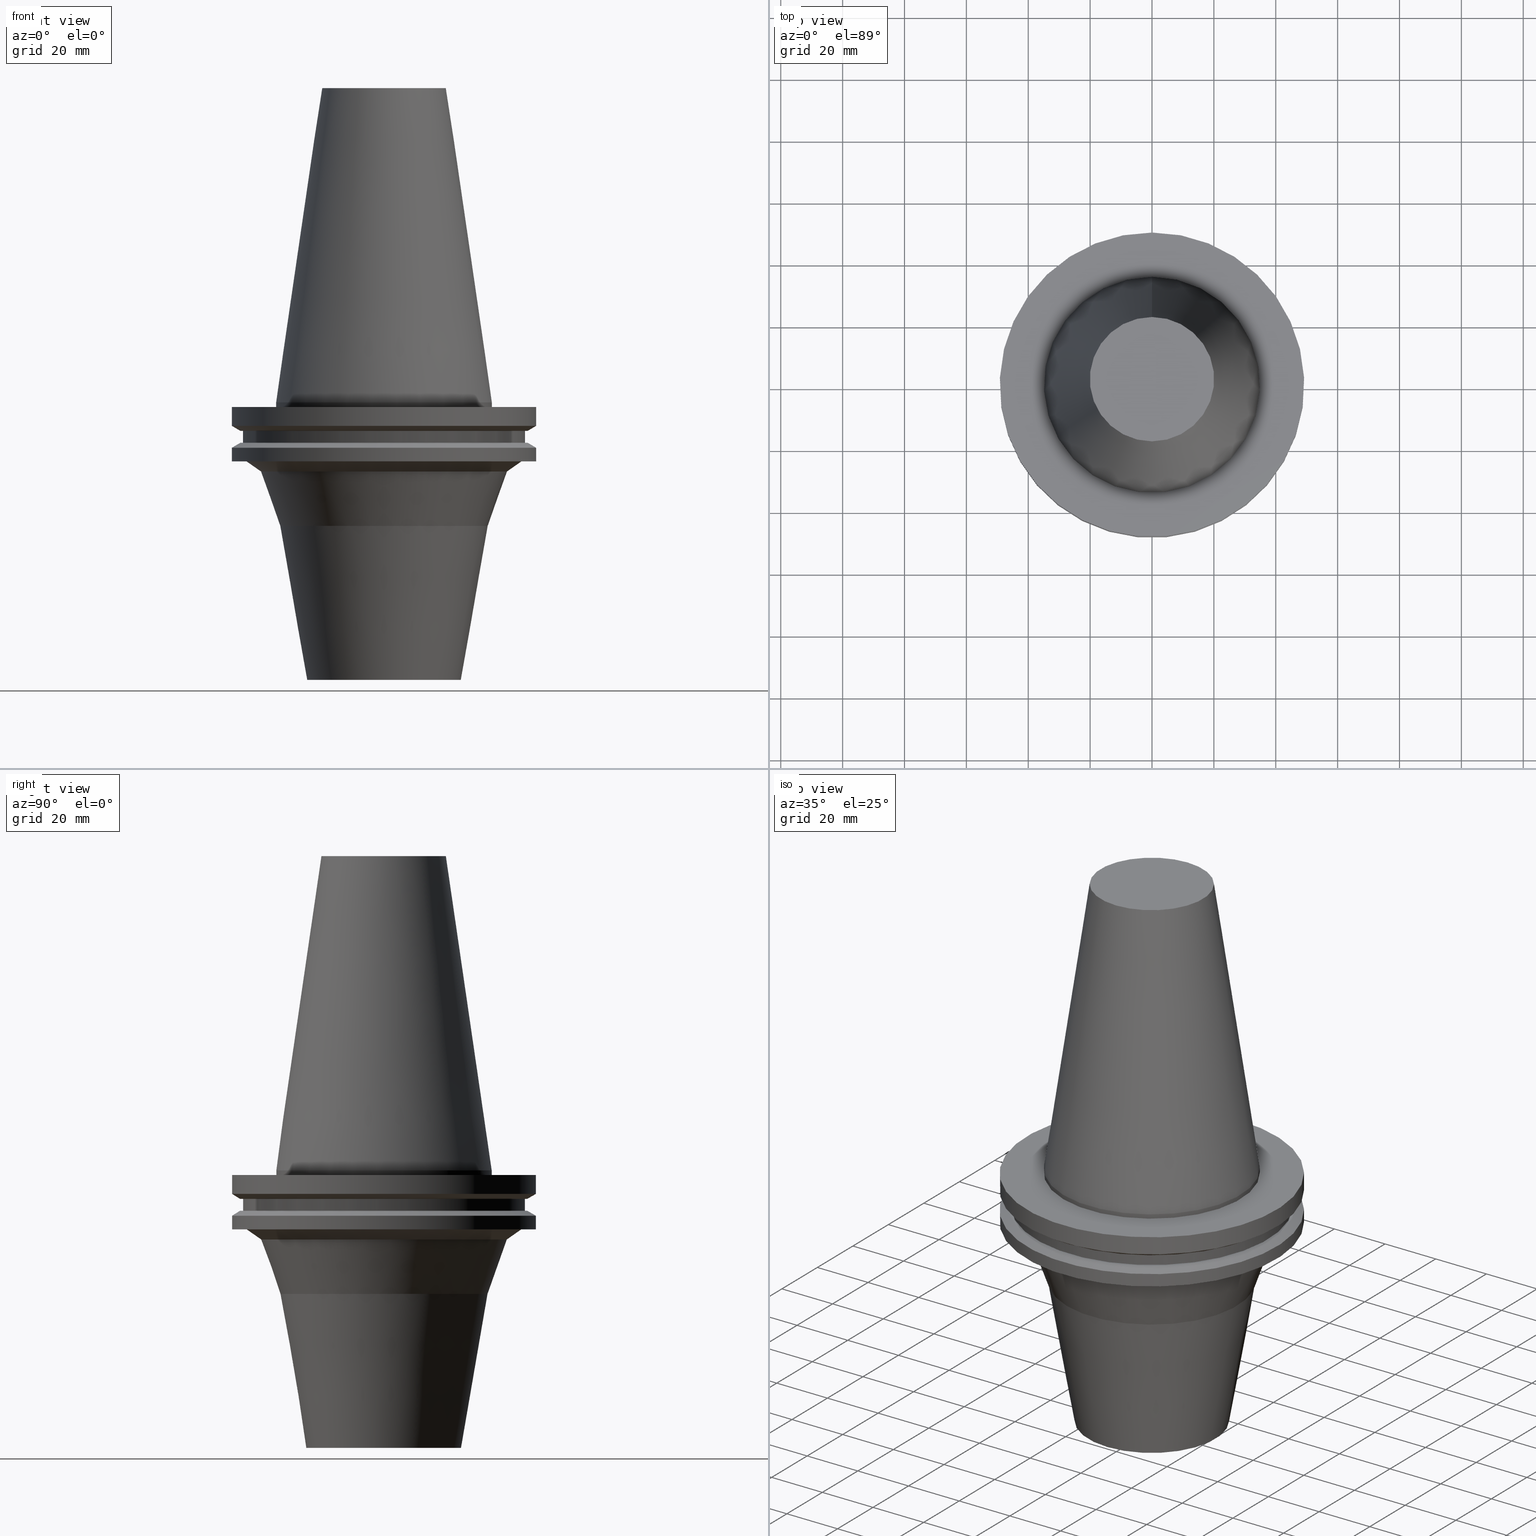
[diagram: canonical four-view strip — front | top / right | iso, engineering-drawing reading convention]
A machine part, canonical four-view strip (front | top / right | iso — engineering-drawing reading convention). The complete STEP part file that produces these views, byte-faithful:
ISO-10303-21;
HEADER;
FILE_DESCRIPTION((''),'1');
FILE_NAME('V:/01_Dxf_Field-HP\X2\FF71FF6FFF8CFF9F5916\X0\2013/BIGKAISER\X2\FF76FF80FF9BFF78FF9E63B28F095206\X0\_BKUS_201803/BCV_Y-S/BCV50Y-S50-3.5.stp','2018-03-13T06:08:41',(''),(''),'Spatial Interop R21 SP3','Kubotek KeyCreator 2011 V10.0.2 (22737)',' ');
FILE_SCHEMA(('automotive_design'));
ENDSEC;
DATA;
#1=MECHANICAL_DESIGN_GEOMETRIC_PRESENTATION_REPRESENTATION(' ',(#10,#11,#12,#13,#14,#15,#16,#17,#18,#19,#20,#21,#22,#23,#24,#25,#26,#27,#28,#29,#30,#31,#32,#33,#34,#35,#36,#37,#38,#39,#40,#41),#6);
#2=PRODUCT_DEFINITION_CONTEXT('',#42,'design');
#3=APPLICATION_PROTOCOL_DEFINITION('INTERNATIONAL STANDARD','automotive_design',1994,#42);
#4=PRODUCT_CATEGORY_RELATIONSHIP('NONE','NONE',#43,#44);
#5=SHAPE_DEFINITION_REPRESENTATION(#45,#46);
#6= (GEOMETRIC_REPRESENTATION_CONTEXT(3)GLOBAL_UNCERTAINTY_ASSIGNED_CONTEXT((#49))GLOBAL_UNIT_ASSIGNED_CONTEXT((#51,#52,#53))REPRESENTATION_CONTEXT('NONE','WORKSPACE'));
#10=STYLED_ITEM('',(#55),#56);
#11=STYLED_ITEM('',(#57,#58),#59);
#12=STYLED_ITEM('',(#60,#61),#62);
#13=STYLED_ITEM('',(#63,#64),#65);
#14=STYLED_ITEM('',(#66),#67);
#15=STYLED_ITEM('',(#68),#69);
#16=STYLED_ITEM('',(#70,#71),#72);
#17=STYLED_ITEM('',(#73,#74),#75);
#18=STYLED_ITEM('',(#76),#77);
#19=STYLED_ITEM('',(#78),#79);
#20=STYLED_ITEM('',(#80),#81);
#21=STYLED_ITEM('',(#82),#83);
#22=STYLED_ITEM('',(#84),#85);
#23=STYLED_ITEM('',(#86,#87),#88);
#24=STYLED_ITEM('',(#89),#90);
#25=STYLED_ITEM('',(#91,#92),#93);
#26=STYLED_ITEM('',(#94),#95);
#27=STYLED_ITEM('',(#96,#97),#98);
#28=STYLED_ITEM('',(#99,#100),#101);
#29=STYLED_ITEM('',(#102,#103),#104);
#30=STYLED_ITEM('',(#105,#106),#107);
#31=STYLED_ITEM('',(#108,#109),#110);
#32=STYLED_ITEM('',(#111),#112);
#33=STYLED_ITEM('',(#113,#114),#115);
#34=STYLED_ITEM('',(#116),#117);
#35=STYLED_ITEM('',(#118,#119),#120);
#36=STYLED_ITEM('',(#121,#122),#123);
#37=STYLED_ITEM('',(#124,#125),#126);
#38=STYLED_ITEM('',(#127,#128),#129);
#39=STYLED_ITEM('',(#130),#131);
#40=STYLED_ITEM('',(#132),#133);
#41=STYLED_ITEM('',(#134),#135);
#42=APPLICATION_CONTEXT(' ');
#43=PRODUCT_CATEGORY('part','NONE');
#44=PRODUCT_RELATED_PRODUCT_CATEGORY('detail',' ',(#136));
#45=PRODUCT_DEFINITION_SHAPE('NONE','NONE',#137);
#46=ADVANCED_BREP_SHAPE_REPRESENTATION('Unnamed[1]',(#120,#138),#6);
#49=UNCERTAINTY_MEASURE_WITH_UNIT(LENGTH_MEASURE(1.0E-006),#51,'','');
#51= (CONVERSION_BASED_UNIT('MILLIMETRE',#141)LENGTH_UNIT()NAMED_UNIT(#144));
#52= (NAMED_UNIT(#146)PLANE_ANGLE_UNIT()SI_UNIT($,.RADIAN.));
#53= (NAMED_UNIT(#146)SOLID_ANGLE_UNIT()SI_UNIT($,.STERADIAN.));
#55=PRESENTATION_STYLE_ASSIGNMENT((#152));
#56=EDGE_CURVE('Unnamed[1]',#153,#153,#154,.T.);
#57=PRESENTATION_STYLE_ASSIGNMENT((#155));
#58=PRESENTATION_STYLE_ASSIGNMENT((#156));
#59=ADVANCED_FACE('Unnamed[1]',(#157,#158),#159,.T.);
#60=PRESENTATION_STYLE_ASSIGNMENT((#160));
#61=PRESENTATION_STYLE_ASSIGNMENT((#161));
#62=ADVANCED_FACE('Unnamed[1]',(#162,#163),#164,.T.);
#63=PRESENTATION_STYLE_ASSIGNMENT((#165));
#64=PRESENTATION_STYLE_ASSIGNMENT((#166));
#65=ADVANCED_FACE('Unnamed[1]',(#167,#168),#169,.T.);
#66=PRESENTATION_STYLE_ASSIGNMENT((#170));
#67=EDGE_CURVE('Unnamed[1]',#171,#171,#172,.T.);
#68=PRESENTATION_STYLE_ASSIGNMENT((#173));
#69=EDGE_CURVE('Unnamed[1]',#174,#174,#175,.T.);
#70=PRESENTATION_STYLE_ASSIGNMENT((#176));
#71=PRESENTATION_STYLE_ASSIGNMENT((#177));
#72=ADVANCED_FACE('Unnamed[1]',(#178,#179),#180,.T.);
#73=PRESENTATION_STYLE_ASSIGNMENT((#181));
#74=PRESENTATION_STYLE_ASSIGNMENT((#182));
#75=ADVANCED_FACE('Unnamed[1]',(#183,#184),#185,.T.);
#76=PRESENTATION_STYLE_ASSIGNMENT((#186));
#77=EDGE_CURVE('Unnamed[1]',#187,#187,#188,.T.);
#78=PRESENTATION_STYLE_ASSIGNMENT((#189));
#79=EDGE_CURVE('Unnamed[1]',#190,#190,#191,.T.);
#80=PRESENTATION_STYLE_ASSIGNMENT((#192));
#81=EDGE_CURVE('Unnamed[1]',#193,#193,#194,.T.);
#82=PRESENTATION_STYLE_ASSIGNMENT((#195));
#83=EDGE_CURVE('Unnamed[1]',#196,#196,#197,.T.);
#84=PRESENTATION_STYLE_ASSIGNMENT((#198));
#85=EDGE_CURVE('Unnamed[1]',#199,#199,#200,.T.);
#86=PRESENTATION_STYLE_ASSIGNMENT((#201));
#87=PRESENTATION_STYLE_ASSIGNMENT((#202));
#88=ADVANCED_FACE('Unnamed[1]',(#203,#204),#205,.T.);
#89=PRESENTATION_STYLE_ASSIGNMENT((#206));
#90=EDGE_CURVE('Unnamed[1]',#207,#207,#208,.T.);
#91=PRESENTATION_STYLE_ASSIGNMENT((#209));
#92=PRESENTATION_STYLE_ASSIGNMENT((#210));
#93=ADVANCED_FACE('Unnamed[1]',(#211,#212),#213,.T.);
#94=PRESENTATION_STYLE_ASSIGNMENT((#214));
#95=EDGE_CURVE('Unnamed[1]',#215,#215,#216,.T.);
#96=PRESENTATION_STYLE_ASSIGNMENT((#217));
#97=PRESENTATION_STYLE_ASSIGNMENT((#218));
#98=ADVANCED_FACE('Unnamed[1]',(#219,#220),#221,.T.);
#99=PRESENTATION_STYLE_ASSIGNMENT((#222));
#100=PRESENTATION_STYLE_ASSIGNMENT((#223));
#101=ADVANCED_FACE('Unnamed[1]',(#224),#225,.T.);
#102=PRESENTATION_STYLE_ASSIGNMENT((#226));
#103=PRESENTATION_STYLE_ASSIGNMENT((#227));
#104=ADVANCED_FACE('Unnamed[1]',(#228,#229),#230,.T.);
#105=PRESENTATION_STYLE_ASSIGNMENT((#231));
#106=PRESENTATION_STYLE_ASSIGNMENT((#232));
#107=ADVANCED_FACE('Unnamed[1]',(#233,#234),#235,.T.);
#108=PRESENTATION_STYLE_ASSIGNMENT((#236));
#109=PRESENTATION_STYLE_ASSIGNMENT((#237));
#110=ADVANCED_FACE('Unnamed[1]',(#238),#239,.T.);
#111=PRESENTATION_STYLE_ASSIGNMENT((#240));
#112=EDGE_CURVE('Unnamed[1]',#241,#241,#242,.T.);
#113=PRESENTATION_STYLE_ASSIGNMENT((#243));
#114=PRESENTATION_STYLE_ASSIGNMENT((#244));
#115=ADVANCED_FACE('Unnamed[1]',(#245,#246),#247,.T.);
#116=PRESENTATION_STYLE_ASSIGNMENT((#248));
#117=EDGE_CURVE('Unnamed[1]',#249,#249,#250,.T.);
#118=PRESENTATION_STYLE_ASSIGNMENT((#251));
#119=PRESENTATION_STYLE_ASSIGNMENT((#252));
#120=MANIFOLD_SOLID_BREP('Unnamed[1]',#253);
#121=PRESENTATION_STYLE_ASSIGNMENT((#254));
#122=PRESENTATION_STYLE_ASSIGNMENT((#255));
#123=ADVANCED_FACE('Unnamed[1]',(#256,#257),#258,.T.);
#124=PRESENTATION_STYLE_ASSIGNMENT((#259));
#125=PRESENTATION_STYLE_ASSIGNMENT((#260));
#126=ADVANCED_FACE('Unnamed[1]',(#261,#262),#263,.T.);
#127=PRESENTATION_STYLE_ASSIGNMENT((#264));
#128=PRESENTATION_STYLE_ASSIGNMENT((#265));
#129=ADVANCED_FACE('Unnamed[1]',(#266,#267),#268,.T.);
#130=PRESENTATION_STYLE_ASSIGNMENT((#269));
#131=EDGE_CURVE('Unnamed[1]',#270,#270,#271,.T.);
#132=PRESENTATION_STYLE_ASSIGNMENT((#272));
#133=EDGE_CURVE('Unnamed[1]',#273,#273,#274,.T.);
#134=PRESENTATION_STYLE_ASSIGNMENT((#275));
#135=EDGE_CURVE('Unnamed[1]',#276,#276,#277,.T.);
#136=PRODUCT('Unnamed[1]','Unnamed[1]','PART-Unnamed[1]-DESC',(#278));
#137=PRODUCT_DEFINITION('NONE','NONE',#279,#2);
#138=AXIS2_PLACEMENT_3D('',#280,#281,#282);
#141=LENGTH_MEASURE_WITH_UNIT(LENGTH_MEASURE(1.0),#283);
#144=DIMENSIONAL_EXPONENTS(1.0,0.0,0.0,0.0,0.0,0.0,0.0);
#146=DIMENSIONAL_EXPONENTS(0.0,0.0,0.0,0.0,0.0,0.0,0.0);
#152=CURVE_STYLE('',#284,POSITIVE_LENGTH_MEASURE(1000.0),#285);
#153=VERTEX_POINT('',#286);
#154=CIRCLE('',#287,45.645);
#155=SURFACE_STYLE_USAGE(.BOTH.,#288);
#156=CURVE_STYLE('',#289,POSITIVE_LENGTH_MEASURE(1000.0),#290);
#157=FACE_BOUND('',#291,.T.);
#158=FACE_BOUND('',#292,.T.);
#159=CONICAL_SURFACE('',#293,47.821518775,1.04719755103024);
#160=SURFACE_STYLE_USAGE(.BOTH.,#294);
#161=CURVE_STYLE('',#295,POSITIVE_LENGTH_MEASURE(1000.0),#296);
#162=FACE_BOUND('',#297,.T.);
#163=FACE_BOUND('',#298,.T.);
#164=CONICAL_SURFACE('',#299,27.5166666648608,0.144812498273746);
#165=SURFACE_STYLE_USAGE(.BOTH.,#300);
#166=CURVE_STYLE('',#301,POSITIVE_LENGTH_MEASURE(1000.0),#302);
#167=FACE_BOUND('',#303,.T.);
#168=FACE_OUTER_BOUND('',#304,.T.);
#169=PLANE('',#305);
#170=CURVE_STYLE('',#306,POSITIVE_LENGTH_MEASURE(1000.0),#307);
#171=VERTEX_POINT('',#308);
#172=CIRCLE('',#309,45.645);
#173=CURVE_STYLE('',#310,POSITIVE_LENGTH_MEASURE(1000.0),#311);
#174=VERTEX_POINT('',#312);
#175=CIRCLE('',#313,34.925);
#176=SURFACE_STYLE_USAGE(.BOTH.,#314);
#177=CURVE_STYLE('',#315,POSITIVE_LENGTH_MEASURE(1000.0),#316);
#178=FACE_BOUND('',#317,.T.);
#179=FACE_BOUND('',#318,.T.);
#180=CYLINDRICAL_SURFACE('',#319,49.2125);
#181=SURFACE_STYLE_USAGE(.BOTH.,#320);
#182=CURVE_STYLE('',#321,POSITIVE_LENGTH_MEASURE(1000.0),#322);
#183=FACE_OUTER_BOUND('',#323,.T.);
#184=FACE_BOUND('',#324,.T.);
#185=PLANE('',#325);
#186=CURVE_STYLE('',#326,POSITIVE_LENGTH_MEASURE(1000.0),#327);
#187=VERTEX_POINT('',#328);
#188=CIRCLE('',#329,49.2125);
#189=CURVE_STYLE('',#330,POSITIVE_LENGTH_MEASURE(1000.0),#331);
#190=VERTEX_POINT('',#332);
#191=CIRCLE('',#333,46.43053755);
#192=CURVE_STYLE('',#334,POSITIVE_LENGTH_MEASURE(1000.0),#335);
#193=VERTEX_POINT('',#336);
#194=CIRCLE('',#337,44.5010376910482);
#195=CURVE_STYLE('',#338,POSITIVE_LENGTH_MEASURE(1000.0),#339);
#196=VERTEX_POINT('',#340);
#197=CIRCLE('',#341,49.2125);
#198=CURVE_STYLE('',#342,POSITIVE_LENGTH_MEASURE(1000.0),#343);
#199=VERTEX_POINT('',#344);
#200=CIRCLE('',#345,33.5687005288532);
#201=SURFACE_STYLE_USAGE(.BOTH.,#346);
#202=CURVE_STYLE('',#347,POSITIVE_LENGTH_MEASURE(1000.0),#348);
#203=FACE_BOUND('',#349,.T.);
#204=FACE_BOUND('',#350,.T.);
#205=CYLINDRICAL_SURFACE('',#351,34.925);
#206=CURVE_STYLE('',#352,POSITIVE_LENGTH_MEASURE(1000.0),#353);
#207=VERTEX_POINT('',#354);
#208=CIRCLE('',#355,20.1083333297217);
#209=SURFACE_STYLE_USAGE(.BOTH.,#356);
#210=CURVE_STYLE('',#357,POSITIVE_LENGTH_MEASURE(1000.0),#358);
#211=FACE_BOUND('',#359,.T.);
#212=FACE_BOUND('',#360,.T.);
#213=CONICAL_SURFACE('',#361,47.821518775,1.04719755103023);
#214=CURVE_STYLE('',#362,POSITIVE_LENGTH_MEASURE(1000.0),#363);
#215=VERTEX_POINT('',#364);
#216=CIRCLE('',#365,24.9999999999992);
#217=SURFACE_STYLE_USAGE(.BOTH.,#366);
#218=CURVE_STYLE('',#367,POSITIVE_LENGTH_MEASURE(1000.0),#368);
#219=FACE_BOUND('',#369,.T.);
#220=FACE_BOUND('',#370,.T.);
#221=CYLINDRICAL_SURFACE('',#371,45.645);
#222=SURFACE_STYLE_USAGE(.BOTH.,#372);
#223=CURVE_STYLE('',#373,POSITIVE_LENGTH_MEASURE(1000.0),#374);
#224=FACE_OUTER_BOUND('',#375,.T.);
#225=PLANE('',#376);
#226=SURFACE_STYLE_USAGE(.BOTH.,#377);
#227=CURVE_STYLE('',#378,POSITIVE_LENGTH_MEASURE(1000.0),#379);
#228=FACE_BOUND('',#380,.T.);
#229=FACE_BOUND('',#381,.T.);
#230=CONICAL_SURFACE('',#382,42.1518061390834,0.95993108859688);
#231=SURFACE_STYLE_USAGE(.BOTH.,#383);
#232=CURVE_STYLE('',#384,POSITIVE_LENGTH_MEASURE(1000.0),#385);
#233=FACE_OUTER_BOUND('',#386,.T.);
#234=FACE_BOUND('',#387,.T.);
#235=PLANE('',#388);
#236=SURFACE_STYLE_USAGE(.BOTH.,#389);
#237=CURVE_STYLE('',#390,POSITIVE_LENGTH_MEASURE(1000.0),#391);
#238=FACE_OUTER_BOUND('',#392,.T.);
#239=PLANE('',#393);
#240=CURVE_STYLE('',#394,POSITIVE_LENGTH_MEASURE(1000.0),#395);
#241=VERTEX_POINT('',#396);
#242=CIRCLE('',#397,49.2125);
#243=SURFACE_STYLE_USAGE(.BOTH.,#398);
#244=CURVE_STYLE('',#399,POSITIVE_LENGTH_MEASURE(1000.0),#400);
#245=FACE_BOUND('',#401,.T.);
#246=FACE_BOUND('',#402,.T.);
#247=CONICAL_SURFACE('',#403,29.2843502644262,0.170501990427445);
#248=CURVE_STYLE('',#404,POSITIVE_LENGTH_MEASURE(1000.0),#405);
#249=VERTEX_POINT('',#406);
#250=CIRCLE('',#407,49.2125);
#251=SURFACE_STYLE_USAGE(.BOTH.,#408);
#252=CURVE_STYLE('',#409,POSITIVE_LENGTH_MEASURE(1000.0),#410);
#253=CLOSED_SHELL('',(#101,#62,#88,#107,#72,#59,#65,#98,#75,#93,#123,#126,#104,#129,#115,#110));
#254=SURFACE_STYLE_USAGE(.BOTH.,#411);
#255=CURVE_STYLE('',#412,POSITIVE_LENGTH_MEASURE(1000.0),#413);
#256=FACE_BOUND('',#414,.T.);
#257=FACE_BOUND('',#415,.T.);
#258=CYLINDRICAL_SURFACE('',#416,49.2125);
#259=SURFACE_STYLE_USAGE(.BOTH.,#417);
#260=CURVE_STYLE('',#418,POSITIVE_LENGTH_MEASURE(1000.0),#419);
#261=FACE_BOUND('',#420,.T.);
#262=FACE_OUTER_BOUND('',#421,.T.);
#263=PLANE('',#422);
#264=SURFACE_STYLE_USAGE(.BOTH.,#423);
#265=CURVE_STYLE('',#424,POSITIVE_LENGTH_MEASURE(1000.0),#425);
#266=FACE_BOUND('',#426,.T.);
#267=FACE_BOUND('',#427,.T.);
#268=CONICAL_SURFACE('',#428,36.6856375579859,0.340546633697126);
#269=CURVE_STYLE('',#429,POSITIVE_LENGTH_MEASURE(1000.0),#430);
#270=VERTEX_POINT('',#431);
#271=CIRCLE('',#432,34.925);
#272=CURVE_STYLE('',#433,POSITIVE_LENGTH_MEASURE(1000.0),#434);
#273=VERTEX_POINT('',#435);
#274=CIRCLE('',#436,46.43053755);
#275=CURVE_STYLE('',#437,POSITIVE_LENGTH_MEASURE(1000.0),#438);
#276=VERTEX_POINT('',#439);
#277=CIRCLE('',#440,39.8025745871186);
#278=PRODUCT_CONTEXT('',#42,'mechanical');
#279=PRODUCT_DEFINITION_FORMATION_WITH_SPECIFIED_SOURCE(' ','NONE',#136,.NOT_KNOWN.);
#280=CARTESIAN_POINT('',(0.0,0.0,0.0));
#281=DIRECTION('',(0.0,0.0,1.0));
#282=DIRECTION('',(1.0,0.0,0.0));
#283= (NAMED_UNIT(#144)LENGTH_UNIT()SI_UNIT(.MILLI.,.METRE.));
#284=DRAUGHTING_PRE_DEFINED_CURVE_FONT('continuous');
#285=COLOUR_RGB('',0.0,1.0,0.0);
#286=CARTESIAN_POINT('',(7.98469713044073E-016,45.645,-13.04));
#287=AXIS2_PLACEMENT_3D('',#442,#443,#444);
#288=SURFACE_SIDE_STYLE('',(#445));
#289=DRAUGHTING_PRE_DEFINED_CURVE_FONT('continuous');
#290=COLOUR_RGB('',0.0,1.0,0.0);
#291=EDGE_LOOP('',(#446));
#292=EDGE_LOOP('',(#447));
#293=AXIS2_PLACEMENT_3D('',#448,#449,#450);
#294=SURFACE_SIDE_STYLE('',(#451));
#295=DRAUGHTING_PRE_DEFINED_CURVE_FONT('continuous');
#296=COLOUR_RGB('',0.0,1.0,0.0);
#297=EDGE_LOOP('',(#452));
#298=EDGE_LOOP('',(#453));
#299=AXIS2_PLACEMENT_3D('',#454,#455,#456);
#300=SURFACE_SIDE_STYLE('',(#457));
#301=DRAUGHTING_PRE_DEFINED_CURVE_FONT('continuous');
#302=COLOUR_RGB('',0.0,1.0,0.0);
#303=EDGE_LOOP('',(#458));
#304=EDGE_LOOP('',(#459));
#305=AXIS2_PLACEMENT_3D('',#460,#461,#462);
#306=DRAUGHTING_PRE_DEFINED_CURVE_FONT('continuous');
#307=COLOUR_RGB('',0.0,1.0,0.0);
#308=CARTESIAN_POINT('',(5.63337527607782E-016,45.645,-9.2));
#309=AXIS2_PLACEMENT_3D('',#463,#464,#465);
#310=DRAUGHTING_PRE_DEFINED_CURVE_FONT('continuous');
#311=COLOUR_RGB('',0.0,1.0,0.0);
#312=CARTESIAN_POINT('',(9.18485099360511E-017,34.925,-1.5));
#313=AXIS2_PLACEMENT_3D('',#466,#467,#468);
#314=SURFACE_SIDE_STYLE('',(#469));
#315=DRAUGHTING_PRE_DEFINED_CURVE_FONT('continuous');
#316=COLOUR_RGB('',0.0,1.0,0.0);
#317=EDGE_LOOP('',(#470));
#318=EDGE_LOOP('',(#471));
#319=AXIS2_PLACEMENT_3D('',#472,#473,#474);
#320=SURFACE_SIDE_STYLE('',(#475));
#321=DRAUGHTING_PRE_DEFINED_CURVE_FONT('continuous');
#322=COLOUR_RGB('',0.0,1.0,0.0);
#323=EDGE_LOOP('',(#476));
#324=EDGE_LOOP('',(#477));
#325=AXIS2_PLACEMENT_3D('',#478,#479,#480);
#326=DRAUGHTING_PRE_DEFINED_CURVE_FONT('continuous');
#327=COLOUR_RGB('',0.0,1.0,0.0);
#328=CARTESIAN_POINT('',(4.64988177918915E-016,49.2125,-7.59383323));
#329=AXIS2_PLACEMENT_3D('',#481,#482,#483);
#330=DRAUGHTING_PRE_DEFINED_CURVE_FONT('continuous');
#331=COLOUR_RGB('',0.0,1.0,0.0);
#332=CARTESIAN_POINT('',(7.98469713044073E-016,46.43053755,-13.04));
#333=AXIS2_PLACEMENT_3D('',#484,#485,#486);
#334=DRAUGHTING_PRE_DEFINED_CURVE_FONT('continuous');
#335=COLOUR_RGB('',0.0,1.0,0.0);
#336=CARTESIAN_POINT('',(1.16647607618785E-015,44.5010376910482,-19.05));
#337=AXIS2_PLACEMENT_3D('',#487,#488,#489);
#338=DRAUGHTING_PRE_DEFINED_CURVE_FONT('continuous');
#339=COLOUR_RGB('',0.0,1.0,0.0);
#340=CARTESIAN_POINT('',(1.16647607618785E-015,49.2125,-19.05));
#341=AXIS2_PLACEMENT_3D('',#490,#491,#492);
#342=DRAUGHTING_PRE_DEFINED_CURVE_FONT('continuous');
#343=COLOUR_RGB('',0.0,1.0,0.0);
#344=CARTESIAN_POINT('',(2.44514318114198E-015,33.5687005288532,-39.9322185440631));
#345=AXIS2_PLACEMENT_3D('',#493,#494,#495);
#346=SURFACE_SIDE_STYLE('',(#496));
#347=DRAUGHTING_PRE_DEFINED_CURVE_FONT('continuous');
#348=COLOUR_RGB('',0.0,1.0,0.0);
#349=EDGE_LOOP('',(#497));
#350=EDGE_LOOP('',(#498));
#351=AXIS2_PLACEMENT_3D('',#499,#500,#501);
#352=DRAUGHTING_PRE_DEFINED_CURVE_FONT('continuous');
#353=COLOUR_RGB('',0.0,1.0,0.0);
#354=CARTESIAN_POINT('',(-6.22120573966855E-015,20.1083333297217,101.6));
#355=AXIS2_PLACEMENT_3D('',#502,#503,#504);
#356=SURFACE_SIDE_STYLE('',(#505));
#357=DRAUGHTING_PRE_DEFINED_CURVE_FONT('continuous');
#358=COLOUR_RGB('',0.0,1.0,0.0);
#359=EDGE_LOOP('',(#506));
#360=EDGE_LOOP('',(#507));
#361=AXIS2_PLACEMENT_3D('',#508,#509,#510);
#362=DRAUGHTING_PRE_DEFINED_CURVE_FONT('continuous');
#363=COLOUR_RGB('',0.0,1.0,0.0);
#364=CARTESIAN_POINT('',(5.49254089417585E-015,24.9999999999992,-89.6999999999996));
#365=AXIS2_PLACEMENT_3D('',#511,#512,#513);
#366=SURFACE_SIDE_STYLE('',(#514));
#367=DRAUGHTING_PRE_DEFINED_CURVE_FONT('continuous');
#368=COLOUR_RGB('',0.0,1.0,0.0);
#369=EDGE_LOOP('',(#515));
#370=EDGE_LOOP('',(#516));
#371=AXIS2_PLACEMENT_3D('',#517,#518,#519);
#372=SURFACE_SIDE_STYLE('',(#520));
#373=DRAUGHTING_PRE_DEFINED_CURVE_FONT('continuous');
#374=COLOUR_RGB('',0.0,1.0,0.0);
#375=EDGE_LOOP('',(#521));
#376=AXIS2_PLACEMENT_3D('',#522,#523,#524);
#377=SURFACE_SIDE_STYLE('',(#525));
#378=DRAUGHTING_PRE_DEFINED_CURVE_FONT('continuous');
#379=COLOUR_RGB('',0.0,1.0,0.0);
#380=EDGE_LOOP('',(#526));
#381=EDGE_LOOP('',(#527));
#382=AXIS2_PLACEMENT_3D('',#528,#529,#530);
#383=SURFACE_SIDE_STYLE('',(#531));
#384=DRAUGHTING_PRE_DEFINED_CURVE_FONT('continuous');
#385=COLOUR_RGB('',0.0,1.0,0.0);
#386=EDGE_LOOP('',(#532));
#387=EDGE_LOOP('',(#533));
#388=AXIS2_PLACEMENT_3D('',#534,#535,#536);
#389=SURFACE_SIDE_STYLE('',(#537));
#390=DRAUGHTING_PRE_DEFINED_CURVE_FONT('continuous');
#391=COLOUR_RGB('',0.0,1.0,0.0);
#392=EDGE_LOOP('',(#538));
#393=AXIS2_PLACEMENT_3D('',#539,#540,#541);
#394=DRAUGHTING_PRE_DEFINED_CURVE_FONT('continuous');
#395=COLOUR_RGB('',0.0,1.0,0.0);
#396=CARTESIAN_POINT('',(9.18485099360509E-017,49.2125,-1.49999999999999));
#397=AXIS2_PLACEMENT_3D('',#542,#543,#544);
#398=SURFACE_SIDE_STYLE('',(#545));
#399=DRAUGHTING_PRE_DEFINED_CURVE_FONT('continuous');
#400=COLOUR_RGB('',0.0,1.0,0.0);
#401=EDGE_LOOP('',(#546));
#402=EDGE_LOOP('',(#547));
#403=AXIS2_PLACEMENT_3D('',#548,#549,#550);
#404=DRAUGHTING_PRE_DEFINED_CURVE_FONT('continuous');
#405=COLOUR_RGB('',0.0,1.0,0.0);
#406=CARTESIAN_POINT('',(8.96819062732941E-016,49.2125,-14.64616677));
#407=AXIS2_PLACEMENT_3D('',#551,#552,#553);
#408=SURFACE_SIDE_STYLE('',(#554));
#409=DRAUGHTING_PRE_DEFINED_CURVE_FONT('continuous');
#410=COLOUR_RGB('',0.0,1.0,0.0);
#411=SURFACE_SIDE_STYLE('',(#555));
#412=DRAUGHTING_PRE_DEFINED_CURVE_FONT('continuous');
#413=COLOUR_RGB('',0.0,1.0,0.0);
#414=EDGE_LOOP('',(#556));
#415=EDGE_LOOP('',(#557));
#416=AXIS2_PLACEMENT_3D('',#558,#559,#560);
#417=SURFACE_SIDE_STYLE('',(#561));
#418=DRAUGHTING_PRE_DEFINED_CURVE_FONT('continuous');
#419=COLOUR_RGB('',0.0,1.0,0.0);
#420=EDGE_LOOP('',(#562));
#421=EDGE_LOOP('',(#563));
#422=AXIS2_PLACEMENT_3D('',#564,#565,#566);
#423=SURFACE_SIDE_STYLE('',(#567));
#424=DRAUGHTING_PRE_DEFINED_CURVE_FONT('continuous');
#425=COLOUR_RGB('',0.0,1.0,0.0);
#426=EDGE_LOOP('',(#568));
#427=EDGE_LOOP('',(#569));
#428=AXIS2_PLACEMENT_3D('',#570,#571,#572);
#429=DRAUGHTING_PRE_DEFINED_CURVE_FONT('continuous');
#430=COLOUR_RGB('',0.0,1.0,0.0);
#431=CARTESIAN_POINT('',(-4.30483861169435E-031,34.925,4.27707894602213E-015));
#432=AXIS2_PLACEMENT_3D('',#573,#574,#575);
#433=DRAUGHTING_PRE_DEFINED_CURVE_FONT('continuous');
#434=COLOUR_RGB('',0.0,1.0,0.0);
#435=CARTESIAN_POINT('',(5.63337527607782E-016,46.43053755,-9.2));
#436=AXIS2_PLACEMENT_3D('',#576,#577,#578);
#437=DRAUGHTING_PRE_DEFINED_CURVE_FONT('continuous');
#438=COLOUR_RGB('',0.0,1.0,0.0);
#439=CARTESIAN_POINT('',(1.36792430753277E-015,39.8025745871186,-22.3398992833717));
#440=AXIS2_PLACEMENT_3D('',#579,#580,#581);
#442=CARTESIAN_POINT('',(7.98469713044073E-016,-9.79986347096308E-015,-13.04));
#443=DIRECTION('',(6.12323399573677E-017,-1.22232681699306E-016,-1.0));
#444=DIRECTION('',(2.65744038894321E-033,1.0,-1.22232681699306E-016));
#445=SURFACE_STYLE_FILL_AREA(#582);
#446=ORIENTED_EDGE('',*,*,#133,.F.);
#447=ORIENTED_EDGE('',*,*,#77,.T.);
#448=CARTESIAN_POINT('',(5.14162852763349E-016,-9.2323269374609E-015,-8.396916615));
#449=DIRECTION('',(-6.12323399573677E-017,1.22232681699361E-016,1.0));
#450=DIRECTION('',(2.65744038894449E-033,1.0,-1.22232681699361E-016));
#451=SURFACE_STYLE_FILL_AREA(#583);
#452=ORIENTED_EDGE('',*,*,#131,.F.);
#453=ORIENTED_EDGE('',*,*,#90,.T.);
#454=CARTESIAN_POINT('',(-3.11060286983428E-015,-1.99652907127746E-015,50.8));
#455=DIRECTION('',(6.12323399573677E-017,-1.22232681699314E-016,-1.0));
#456=DIRECTION('',(2.65744038894731E-033,1.0,-1.22232681699314E-016));
#457=SURFACE_STYLE_FILL_AREA(#584);
#458=ORIENTED_EDGE('',*,*,#67,.F.);
#459=ORIENTED_EDGE('',*,*,#133,.T.);
#460=CARTESIAN_POINT('',(5.63337527607782E-016,46.037768775,-9.2));
#461=DIRECTION('',(6.12323399573677E-017,1.22464679914735E-016,-1.0));
#462=DIRECTION('',(-1.23259516440783E-032,1.0,1.22464679914735E-016));
#463=CARTESIAN_POINT('',(5.63337527607782E-016,-9.33048997323763E-015,-9.19999999999999));
#464=DIRECTION('',(6.12323399573677E-017,-1.22232681699306E-016,-1.0));
#465=DIRECTION('',(2.65744038894321E-033,1.0,-1.22232681699306E-016));
#466=CARTESIAN_POINT('',(9.18485099360506E-017,-8.38929832415274E-015,-1.49999999999999));
#467=DIRECTION('',(6.12323399573676E-017,-1.22232681699329E-016,-1.0));
#468=DIRECTION('',(2.65744038893913E-033,1.0,-1.22232681699329E-016));
#469=SURFACE_STYLE_FILL_AREA(#585);
#470=ORIENTED_EDGE('',*,*,#77,.F.);
#471=ORIENTED_EDGE('',*,*,#112,.T.);
#472=CARTESIAN_POINT('',(2.78418343927483E-016,-8.76173111291846E-015,-4.54691661499999));
#473=DIRECTION('',(6.12323399573677E-017,-1.22232681699326E-016,-1.0));
#474=DIRECTION('',(2.65744038894278E-033,1.0,-1.22232681699326E-016));
#475=SURFACE_STYLE_FILL_AREA(#586);
#476=ORIENTED_EDGE('',*,*,#79,.F.);
#477=ORIENTED_EDGE('',*,*,#56,.T.);
#478=CARTESIAN_POINT('',(7.98469713044073E-016,46.037768775,-13.04));
#479=DIRECTION('',(-6.12323399573677E-017,-1.22464679914735E-016,1.0));
#480=DIRECTION('',(1.23259516440783E-032,-1.0,-1.22464679914735E-016));
#481=CARTESIAN_POINT('',(4.64988177918915E-016,-9.13416390168417E-015,-7.59383322999999));
#482=DIRECTION('',(6.12323399573677E-017,-1.22232681699326E-016,-1.0));
#483=DIRECTION('',(2.65744038894278E-033,1.0,-1.22232681699326E-016));
#484=CARTESIAN_POINT('',(7.98469713044073E-016,-9.79986347096308E-015,-13.04));
#485=DIRECTION('',(6.12323399573677E-017,-1.22232681699328E-016,-1.0));
#486=DIRECTION('',(2.6574403889463E-033,1.0,-1.22232681699328E-016));
#487=CARTESIAN_POINT('',(1.16647607618785E-015,-1.05344818879761E-014,-19.05));
#488=DIRECTION('',(6.12323399573676E-017,-1.22232681699371E-016,-1.0));
#489=DIRECTION('',(2.65744038894765E-033,1.0,-1.22232681699371E-016));
#490=CARTESIAN_POINT('',(1.16647607618785E-015,-1.05344818879761E-014,-19.05));
#491=DIRECTION('',(6.12323399573676E-017,-1.22232681699326E-016,-1.0));
#492=DIRECTION('',(2.65744038894278E-033,1.0,-1.22232681699326E-016));
#493=CARTESIAN_POINT('',(2.44514318114198E-015,-1.30869714604485E-014,-39.9322185440631));
#494=DIRECTION('',(6.12323399573676E-017,-1.22232681699308E-016,-1.0));
#495=DIRECTION('',(2.65744038894555E-033,1.0,-1.22232681699308E-016));
#496=SURFACE_STYLE_FILL_AREA(#587);
#497=ORIENTED_EDGE('',*,*,#69,.F.);
#498=ORIENTED_EDGE('',*,*,#131,.T.);
#499=CARTESIAN_POINT('',(4.59242549680249E-017,-8.29762381287824E-015,-0.749999999999986));
#500=DIRECTION('',(6.12323399573676E-017,-1.22232681699329E-016,-1.0));
#501=DIRECTION('',(2.65744038893913E-033,1.0,-1.22232681699329E-016));
#502=CARTESIAN_POINT('',(-6.22120573966855E-015,4.21289115904882E-015,101.6));
#503=DIRECTION('',(6.12323399573677E-017,-1.22232681699369E-016,-1.0));
#504=DIRECTION('',(2.65744038894814E-033,1.0,-1.22232681699369E-016));
#505=SURFACE_STYLE_FILL_AREA(#588);
#506=ORIENTED_EDGE('',*,*,#117,.F.);
#507=ORIENTED_EDGE('',*,*,#79,.T.);
#508=CARTESIAN_POINT('',(8.47644387888507E-016,-9.89802650673981E-015,-13.843083385));
#509=DIRECTION('',(6.12323399573677E-017,-1.22232681699361E-016,-1.0));
#510=DIRECTION('',(2.65744038894824E-033,1.0,-1.22232681699361E-016));
#511=CARTESIAN_POINT('',(5.49254089417585E-015,-1.91702208500342E-014,-89.6999999999996));
#512=DIRECTION('',(6.12323399573677E-017,-1.22232681699313E-016,-1.0));
#513=DIRECTION('',(2.6574403889421E-033,1.0,-1.22232681699313E-016));
#514=SURFACE_STYLE_FILL_AREA(#589);
#515=ORIENTED_EDGE('',*,*,#56,.F.);
#516=ORIENTED_EDGE('',*,*,#67,.T.);
#517=CARTESIAN_POINT('',(6.80903620325928E-016,-9.56517672210036E-015,-11.12));
#518=DIRECTION('',(6.12323399573677E-017,-1.22232681699306E-016,-1.0));
#519=DIRECTION('',(2.65744038894321E-033,1.0,-1.22232681699306E-016));
#520=SURFACE_STYLE_FILL_AREA(#590);
#521=ORIENTED_EDGE('',*,*,#90,.F.);
#522=CARTESIAN_POINT('',(-6.22120573966855E-015,10.0541666648608,101.6));
#523=DIRECTION('',(-6.12323399573677E-017,-1.22464679914735E-016,1.0));
#524=DIRECTION('',(1.23259516440783E-032,-1.0,-1.22464679914735E-016));
#525=SURFACE_STYLE_FILL_AREA(#591);
#526=ORIENTED_EDGE('',*,*,#135,.F.);
#527=ORIENTED_EDGE('',*,*,#81,.T.);
#528=CARTESIAN_POINT('',(1.26720019186031E-015,-1.07355484939397E-014,-20.6949496416859));
#529=DIRECTION('',(-6.12323399573677E-017,1.22232681699371E-016,1.0));
#530=DIRECTION('',(2.65744038894824E-033,1.0,-1.22232681699371E-016));
#531=SURFACE_STYLE_FILL_AREA(#592);
#532=ORIENTED_EDGE('',*,*,#112,.F.);
#533=ORIENTED_EDGE('',*,*,#69,.T.);
#534=CARTESIAN_POINT('',(9.1848509936051E-017,42.06875,-1.49999999999999));
#535=DIRECTION('',(-6.12323399573677E-017,-1.22464679914735E-016,1.0));
#536=DIRECTION('',(1.23259516440783E-032,-1.0,-1.22464679914735E-016));
#537=SURFACE_STYLE_FILL_AREA(#593);
#538=ORIENTED_EDGE('',*,*,#95,.T.);
#539=CARTESIAN_POINT('',(5.49254089417586E-015,12.4999999999996,-89.6999999999997));
#540=DIRECTION('',(6.12323399573677E-017,1.03542800748605E-014,-1.0));
#541=DIRECTION('',(-6.38843950288425E-031,1.0,1.03542800748605E-014));
#542=CARTESIAN_POINT('',(9.18485099360506E-017,-8.38929832415274E-015,-1.49999999999999));
#543=DIRECTION('',(6.12323399573677E-017,-1.22232681699326E-016,-1.0));
#544=DIRECTION('',(2.65744038894278E-033,1.0,-1.22232681699326E-016));
#545=SURFACE_STYLE_FILL_AREA(#594);
#546=ORIENTED_EDGE('',*,*,#95,.F.);
#547=ORIENTED_EDGE('',*,*,#85,.T.);
#548=CARTESIAN_POINT('',(3.96884203765892E-015,-1.61285961552413E-014,-64.8161092720314));
#549=DIRECTION('',(-6.12323399573676E-017,1.2223268169931E-016,1.0));
#550=DIRECTION('',(2.65744038894102E-033,1.0,-1.2223268169931E-016));
#551=CARTESIAN_POINT('',(8.96819062732941E-016,-9.99618954251654E-015,-14.64616677));
#552=DIRECTION('',(6.12323399573676E-017,-1.22232681699326E-016,-1.0));
#553=DIRECTION('',(2.65744038894278E-033,1.0,-1.22232681699326E-016));
#554=SURFACE_STYLE_FILL_AREA(#595);
#555=SURFACE_STYLE_FILL_AREA(#596);
#556=ORIENTED_EDGE('',*,*,#83,.F.);
#557=ORIENTED_EDGE('',*,*,#117,.T.);
#558=CARTESIAN_POINT('',(1.0316475694604E-015,-1.02653357152463E-014,-16.848083385));
#559=DIRECTION('',(6.12323399573676E-017,-1.22232681699326E-016,-1.0));
#560=DIRECTION('',(2.65744038894278E-033,1.0,-1.22232681699326E-016));
#561=SURFACE_STYLE_FILL_AREA(#597);
#562=ORIENTED_EDGE('',*,*,#81,.F.);
#563=ORIENTED_EDGE('',*,*,#83,.T.);
#564=CARTESIAN_POINT('',(1.16647607618785E-015,46.8567688455241,-19.05));
#565=DIRECTION('',(6.12323399573677E-017,1.22464679914735E-016,-1.0));
#566=DIRECTION('',(-1.23259516440783E-032,1.0,1.22464679914735E-016));
#567=SURFACE_STYLE_FILL_AREA(#598);
#568=ORIENTED_EDGE('',*,*,#85,.F.);
#569=ORIENTED_EDGE('',*,*,#135,.T.);
#570=CARTESIAN_POINT('',(1.90653374433737E-015,-1.20117932801759E-014,-31.1360589137174));
#571=DIRECTION('',(-6.12323399573677E-017,1.22232681699342E-016,1.0));
#572=DIRECTION('',(2.65744038894737E-033,1.0,-1.22232681699342E-016));
#573=CARTESIAN_POINT('',(-8.7016388700601E-031,-8.20594930160374E-015,1.4210854715202E-014));
#574=DIRECTION('',(6.12323399573676E-017,-1.22232681699329E-016,-1.0));
#575=DIRECTION('',(2.65744038893913E-033,1.0,-1.22232681699329E-016));
#576=CARTESIAN_POINT('',(5.63337527607782E-016,-9.33048997323763E-015,-9.19999999999999));
#577=DIRECTION('',(6.12323399573677E-017,-1.22232681699328E-016,-1.0));
#578=DIRECTION('',(2.6574403889463E-033,1.0,-1.22232681699328E-016));
#579=CARTESIAN_POINT('',(1.36792430753277E-015,-1.09366150999033E-014,-22.3398992833717));
#580=DIRECTION('',(6.12323399573677E-017,-1.22232681699371E-016,-1.0));
#581=DIRECTION('',(2.65744038894889E-033,1.0,-1.22232681699371E-016));
#582=FILL_AREA_STYLE('',(#599));
#583=FILL_AREA_STYLE('',(#600));
#584=FILL_AREA_STYLE('',(#601));
#585=FILL_AREA_STYLE('',(#602));
#586=FILL_AREA_STYLE('',(#603));
#587=FILL_AREA_STYLE('',(#604));
#588=FILL_AREA_STYLE('',(#605));
#589=FILL_AREA_STYLE('',(#606));
#590=FILL_AREA_STYLE('',(#607));
#591=FILL_AREA_STYLE('',(#608));
#592=FILL_AREA_STYLE('',(#609));
#593=FILL_AREA_STYLE('',(#610));
#594=FILL_AREA_STYLE('',(#611));
#595=FILL_AREA_STYLE('',(#612));
#596=FILL_AREA_STYLE('',(#613));
#597=FILL_AREA_STYLE('',(#614));
#598=FILL_AREA_STYLE('',(#615));
#599=FILL_AREA_STYLE_COLOUR('',#616);
#600=FILL_AREA_STYLE_COLOUR('',#617);
#601=FILL_AREA_STYLE_COLOUR('',#618);
#602=FILL_AREA_STYLE_COLOUR('',#619);
#603=FILL_AREA_STYLE_COLOUR('',#620);
#604=FILL_AREA_STYLE_COLOUR('',#621);
#605=FILL_AREA_STYLE_COLOUR('',#622);
#606=FILL_AREA_STYLE_COLOUR('',#623);
#607=FILL_AREA_STYLE_COLOUR('',#624);
#608=FILL_AREA_STYLE_COLOUR('',#625);
#609=FILL_AREA_STYLE_COLOUR('',#626);
#610=FILL_AREA_STYLE_COLOUR('',#627);
#611=FILL_AREA_STYLE_COLOUR('',#628);
#612=FILL_AREA_STYLE_COLOUR('',#629);
#613=FILL_AREA_STYLE_COLOUR('',#630);
#614=FILL_AREA_STYLE_COLOUR('',#631);
#615=FILL_AREA_STYLE_COLOUR('',#632);
#616=COLOUR_RGB('',0.0,1.0,0.0);
#617=COLOUR_RGB('',0.0,1.0,0.0);
#618=COLOUR_RGB('',0.0,1.0,0.0);
#619=COLOUR_RGB('',0.0,1.0,0.0);
#620=COLOUR_RGB('',0.0,1.0,0.0);
#621=COLOUR_RGB('',0.0,1.0,0.0);
#622=COLOUR_RGB('',0.0,1.0,0.0);
#623=COLOUR_RGB('',0.0,1.0,0.0);
#624=COLOUR_RGB('',0.0,1.0,0.0);
#625=COLOUR_RGB('',0.0,1.0,0.0);
#626=COLOUR_RGB('',0.0,1.0,0.0);
#627=COLOUR_RGB('',0.0,1.0,0.0);
#628=COLOUR_RGB('',0.0,1.0,0.0);
#629=COLOUR_RGB('',0.0,1.0,0.0);
#630=COLOUR_RGB('',0.0,1.0,0.0);
#631=COLOUR_RGB('',0.0,1.0,0.0);
#632=COLOUR_RGB('',0.0,1.0,0.0);
ENDSEC;
END-ISO-10303-21;
